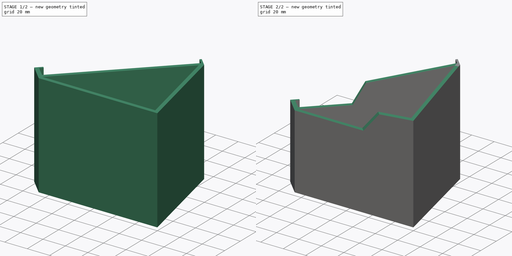
[diagram: build sequence overview — one tinted view per stage of 2, left to right]
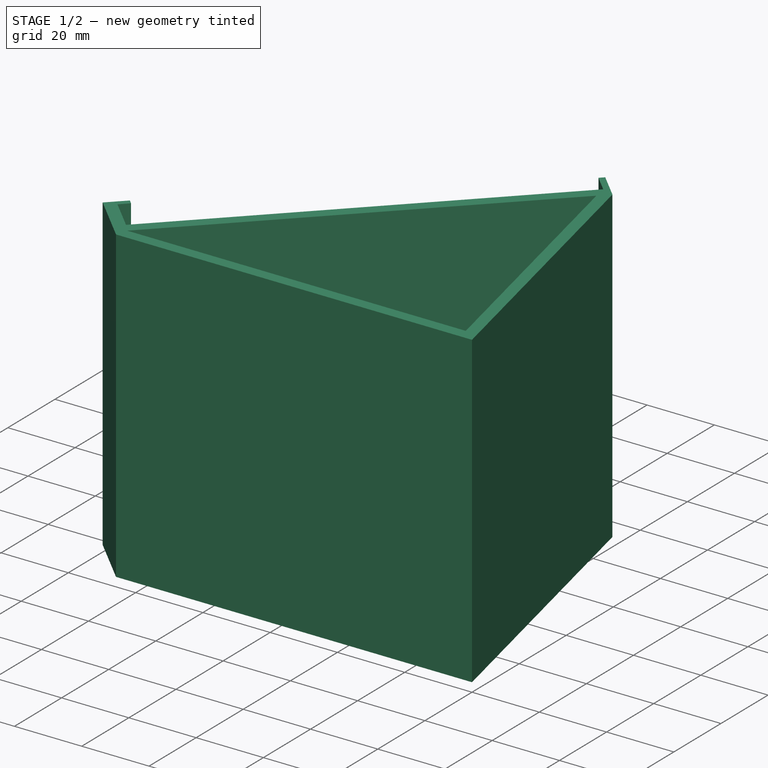
[diagram: stage 1 of 2 — iso view after this stage's code; geometry added in this stage tinted green]
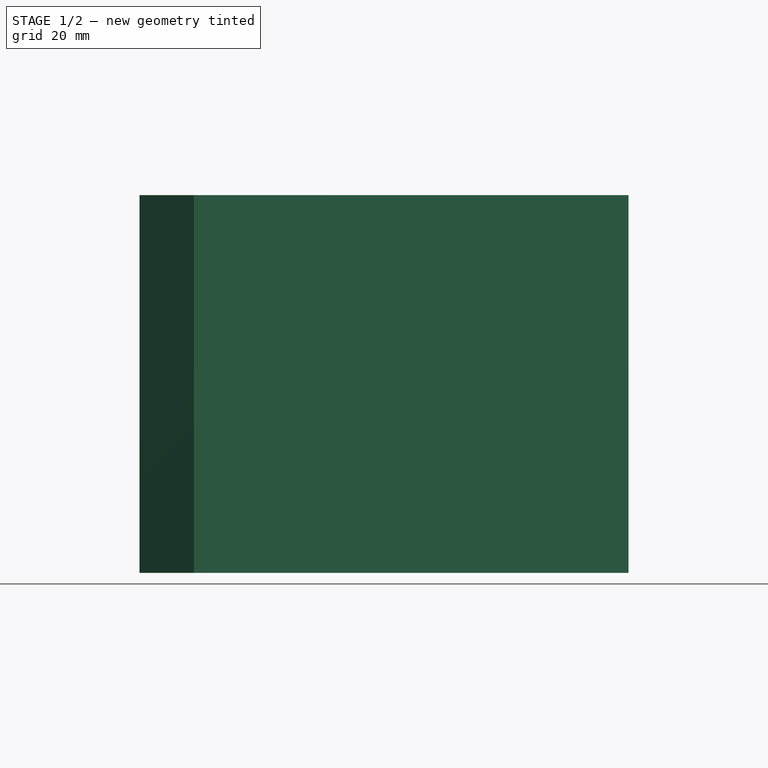
[diagram: stage 1 of 2 — front view after this stage's code; geometry added in this stage tinted green]
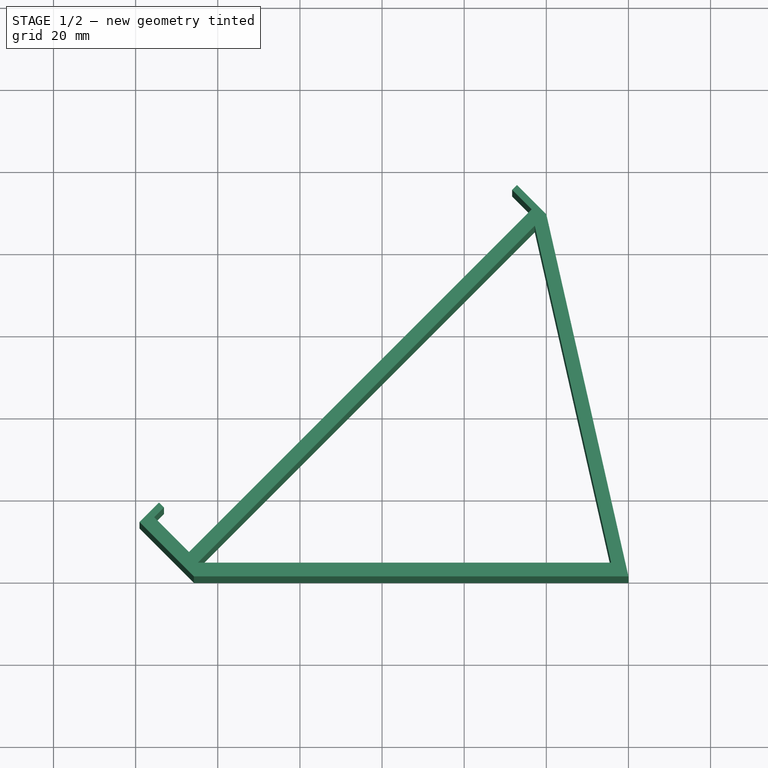
[diagram: stage 1 of 2 — top view after this stage's code; geometry added in this stage tinted green]
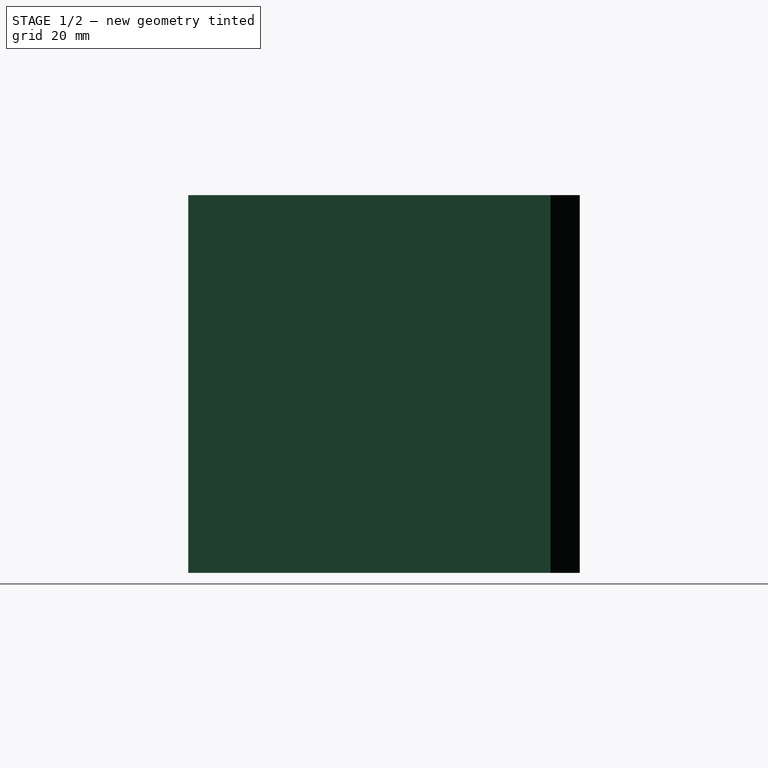
[diagram: stage 1 of 2 — right view after this stage's code; geometry added in this stage tinted green]
FCSTD DOCUMENT  (FreeCAD 1.0R39109 (Git))
Label: split-keyboard-stand
License: All rights reserved
LicenseURL: https://en.wikipedia.org/wiki/All_rights_reserved
objects: Sketcher::SketchObject×2, App::VarSet×1, PartDesign::Pad×1, PartDesign::Pocket×1, PartDesign::Body×1
note: 11 computed .brp shape members not serialized (recipe doc carries the construction recipe); baked Part::Feature solids carry a one-line shape summary decoded from their .brp

FEATURE [App::VarSet] VarSet
  Base_Angle = 45
  Base_HookDepth = 12
  Base_LayerWidth = 0.42
  Base_NarrowWidth = 66
  Base_NarrowWidthOffset = 40
  Base_SurfaceLength = 118
  Base_Thickness = 3.36
  Base_ThinThickness = 1.68
  Base_WideWidth = 92
  expr: Base_ThinThickness = Base_LayerWidth * 4
FEATURE [Sketcher::SketchObject] Sketch
  ArcFitTolerance = 1e-06
  AttachmentSupport = -> [XY_Plane]
  FullyConstrained = true
  MakeInternals = false
  MapMode = 5
  expr: Constraints[0] = VarSet.Base_SurfaceLength
  expr: Constraints[11] = VarSet.Base_HookDepth + VarSet.Base_Thickness * 2
  expr: Constraints[19] = VarSet.Base_Thickness * 2
  expr: Constraints[1] = VarSet.Base_Angle
  expr: Constraints[22] = VarSet.Base_ThinThickness
  expr: Constraints[25] = VarSet.Base_Thickness * 3
  expr: Constraints[3] = VarSet.Base_HookDepth
  expr: Constraints[40] = VarSet.Base_Thickness
  expr: Constraints[41] = VarSet.Base_Thickness
  expr: Constraints[42] = VarSet.Base_Thickness
  expr: Constraints[5] = VarSet.Base_Thickness
  expr: Constraints[6] = VarSet.Base_ThinThickness
  expr: Constraints[9] = VarSet.Base_Thickness * 2
  sketch-geometry (15):
    g0: LineSegment StartX=-107.002 StartY=5.9397 StartZ=0 EndX=-23.5638 EndY=89.3783 EndZ=0
    g1: LineSegment StartX=-107.002 StartY=5.9397 StartZ=0 EndX=-115.488 EndY=14.425 EndZ=0
    g2: LineSegment StartX=-113.112 StartY=16.8009 StartZ=0 EndX=-115.488 EndY=14.425 EndZ=0
    g3: LineSegment StartX=-113.112 StartY=16.8009 StartZ=0 EndX=-114.3 EndY=17.9888 EndZ=0
    g4: LineSegment StartX=-119.052 StartY=13.237 StartZ=0 EndX=-114.3 EndY=17.9888 EndZ=0
    g5: LineSegment StartX=-119.052 StartY=13.237 StartZ=0 EndX=-105.814 EndY=0 EndZ=0
    g6: LineSegment StartX=-23.5638 StartY=89.3783 StartZ=0 EndX=-28.3156 EndY=94.1301 EndZ=0
    g7: LineSegment StartX=-28.3156 StartY=94.1301 StartZ=0 EndX=-27.1276 EndY=95.318 EndZ=0
    g8: LineSegment StartX=-27.1276 StartY=95.318 StartZ=0 EndX=-20 EndY=88.1904 EndZ=0
    g9: LineSegment [constr] StartX=-20 StartY=88.1904 StartZ=0 EndX=-20 EndY=0 EndZ=0
    g10: LineSegment StartX=0 StartY=0 StartZ=0 EndX=-20 EndY=88.1904 EndZ=0
    g11: LineSegment StartX=0 StartY=0 StartZ=0 EndX=-105.814 EndY=0 EndZ=0
    g12: LineSegment StartX=-22.8084 StartY=85.3819 StartZ=0 EndX=-104.83 EndY=3.36 EndZ=0
    g13: LineSegment StartX=-22.8084 StartY=85.3819 StartZ=0 EndX=-4.20731 EndY=3.36 EndZ=0
    g14: LineSegment StartX=-4.20731 StartY=3.36 StartZ=0 EndX=-104.83 EndY=3.36 EndZ=0
  constraints (44):
    c: Distance(g0,g0) = 118
    c: Angle(g-1,g0) = 0.785398
    c: Perpendicular(g0,g1)
    c: Distance(g1,g1) = 12
    c: Perpendicular(g1,g2)
    c: Distance(g2,g2) = 3.36
    c: Distance(g3,g3) = 1.68
    c: Perpendicular(g2,g3)
    c: Perpendicular(g4,g3)
    c: Distance(g4,g4) = 6.72
    c: Perpendicular(g4,g5)
    c: Distance(g5,g5) = 18.72
    c: Coincident(g1,g0)
    c: Coincident(g2,g1)
    c: Coincident(g3,g2)
    c: Coincident(g4,g3)
    c: Coincident(g5,g4)
    c: Coincident(g6,g0)
    c: Perpendicular(g0,g6)
    c: Distance(g6,g6) = 6.72
    c: Coincident(g7,g6)
    c: Perpendicular(g6,g7)
    c: Distance(g7,g7) = 1.68
    c: Coincident(g8,g7)
    c: Perpendicular(g7,g8)
    c: Distance(g8,g8) = 10.08
    c: Coincident(g9,g8)
    c: PointOnObject(g9,g-1)
    c: Vertical(g9)
    c: PointOnObject(g5,g-1)
    c: Coincident(g10,g8)
    c: Coincident(g11,g10)
    c: Coincident(g11,g5)
    c: DistanceX(g9,g10) = 20
    c: Horizontal(g14)
    c: Parallel(g13,g10)
    c: Parallel(g12,g0)
    c: Coincident(g14,g13)
    c: Coincident(g12,g13)
    c: Coincident(g12,g14)
    c: Distance(g0,g12) = 3.36
    c: Distance(g11,g14) = 3.36
    c: Distance(g13,g10) = 3.36
    c: Coincident(g10,g-1)
FEATURE [PartDesign::Pad] Pad
  Direction = (0,0,1)
  Length = 92
  Length2 = 10
  Profile = -> Sketch
  ReferenceAxis = -> Sketch [N_Axis]
  Refine = true
  Suppressed = false
  Type = 0
  expr: Length = VarSet.Base_WideWidth
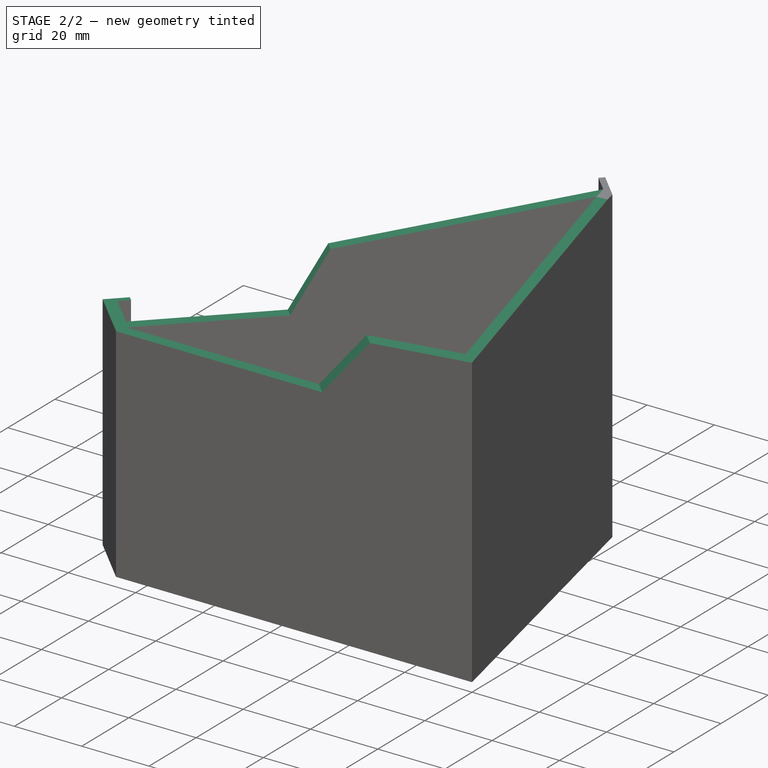
[diagram: stage 2 of 2 — iso view after this stage's code; geometry added in this stage tinted green]
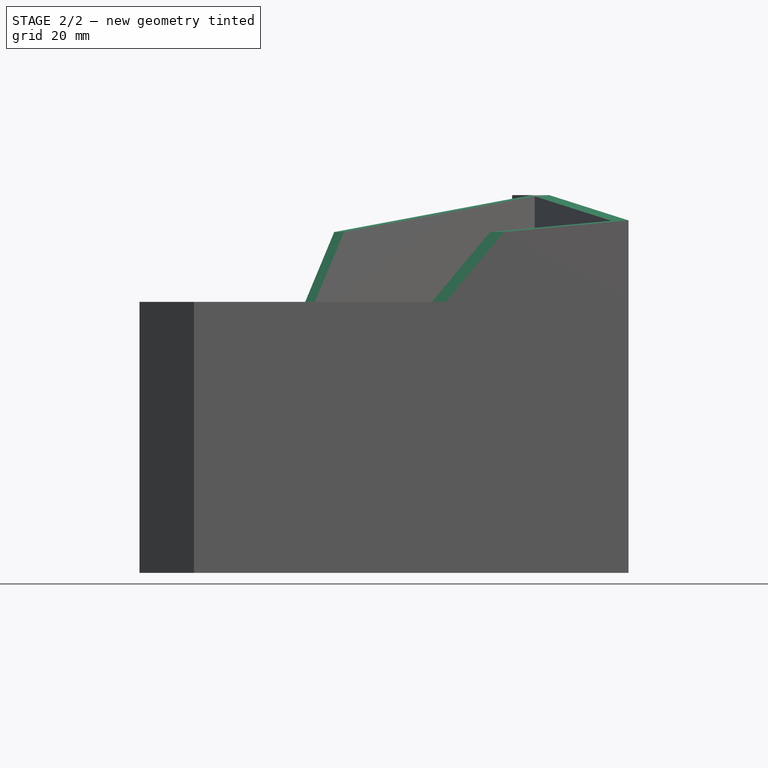
[diagram: stage 2 of 2 — front view after this stage's code; geometry added in this stage tinted green]
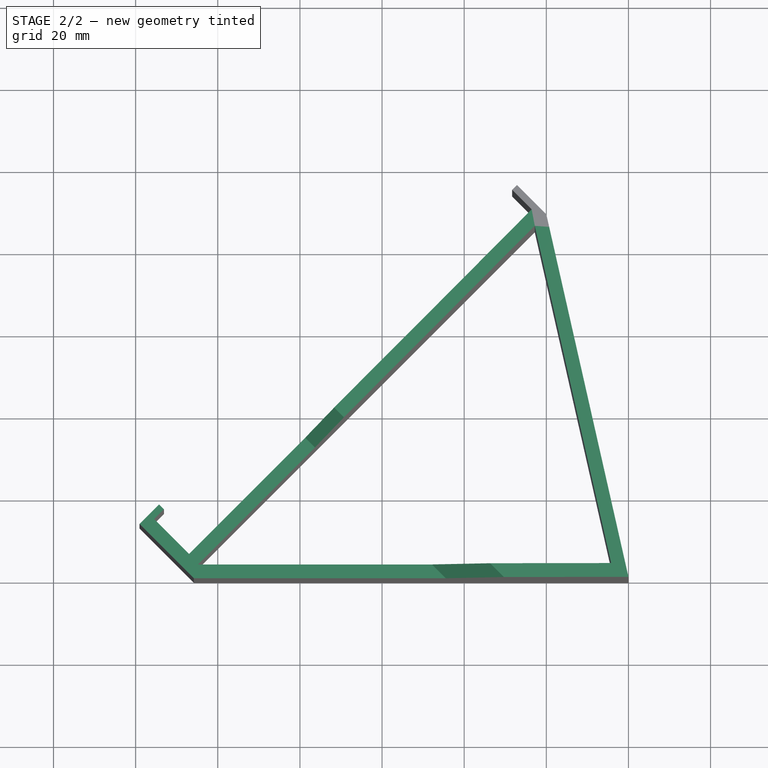
[diagram: stage 2 of 2 — top view after this stage's code; geometry added in this stage tinted green]
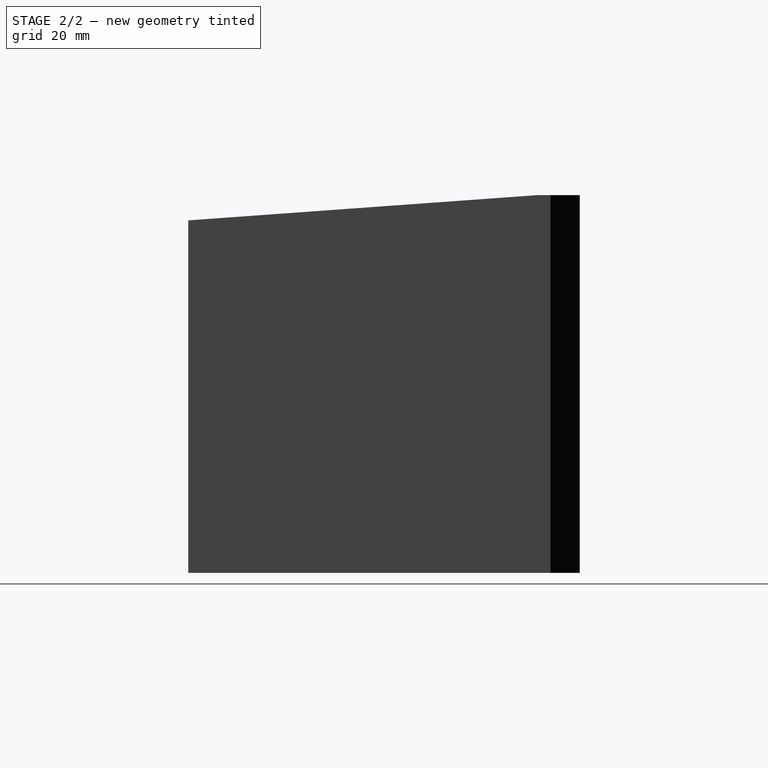
[diagram: stage 2 of 2 — right view after this stage's code; geometry added in this stage tinted green]
FEATURE [Sketcher::SketchObject] Sketch001
  ArcFitTolerance = 1e-06
  AttachmentSupport = -> [Pad]
  ExternalGeometry = -> [Pad]
  FullyConstrained = false
  MakeInternals = false
  MapMode = 5
  Placement = pos=(-56.4711,56.4711,0) rot=(-0.281085,0.678598,0.678598;3.68962rad)
  expr: Constraints[12] = VarSet.Base_NarrowWidthOffset
  expr: Constraints[13] = VarSet.Base_NarrowWidth
  sketch-geometry (8):
    g0: LineSegment StartX=85.0378 StartY=66 StartZ=0 EndX=31.4621 EndY=66 EndZ=0
    g1: LineSegment StartX=31.4621 StartY=66 StartZ=0 EndX=21.4621 EndY=83 EndZ=0
    g2: LineSegment StartX=21.4621 StartY=83 StartZ=0 EndX=-46.5379 EndY=92 EndZ=0
    g3: LineSegment StartX=-46.5379 StartY=92 StartZ=0 EndX=-46.5379 EndY=107.253 EndZ=0
    g4: LineSegment StartX=-46.5379 StartY=107.253 StartZ=0 EndX=85.0378 EndY=107.253 EndZ=0
    g5: LineSegment StartX=85.0378 StartY=107.253 StartZ=0 EndX=85.0378 EndY=66 EndZ=0
    g6: LineSegment [constr] StartX=71.4621 StartY=66 StartZ=0 EndX=31.4621 EndY=66 EndZ=0
    g7: LineSegment [constr] StartX=71.4621 StartY=83 StartZ=0 EndX=21.4621 EndY=83 EndZ=0
  constraints (21):
    c: Horizontal(g0)
    c: Coincident(g1,g0)
    c: Coincident(g2,g1)
    c: Coincident(g3,g2)
    c: Vertical(g3)
    c: Coincident(g4,g3)
    c: Horizontal(g4)
    c: Coincident(g5,g4)
    c: Coincident(g5,g0)
    c: Vertical(g5)
    c: PointOnObject(g6,g-3)
    c: Horizontal(g6)
    c: DistanceX(g6,g6) = 40
    c: DistanceY(g-1,g6) = 66
    c: Coincident(g0,g6)
    c: PointOnObject(g7,g-3)
    c: Horizontal(g7)
    c: Distance(g7,g-1) = 83
    c: DistanceX(g7,g7) = 50
    c: Coincident(g1,g7)
    c: Coincident(g2,g-4)
FEATURE [PartDesign::Pocket] Pocket
  BaseFeature = -> Pad
  Direction = (0.707107,-0.707107,0)
  Length = 200
  Length2 = 5
  Midplane = true
  Profile = -> Sketch001
  ReferenceAxis = -> Sketch001 [N_Axis]
  Refine = true
  Suppressed = false
  Type = 0
FEATURE [PartDesign::Body] Body
  AllowCompound = false
  Group = -> [Sketch,Pad,Sketch001,Pocket]
  Origin = -> Origin
  Tip = -> Pocket
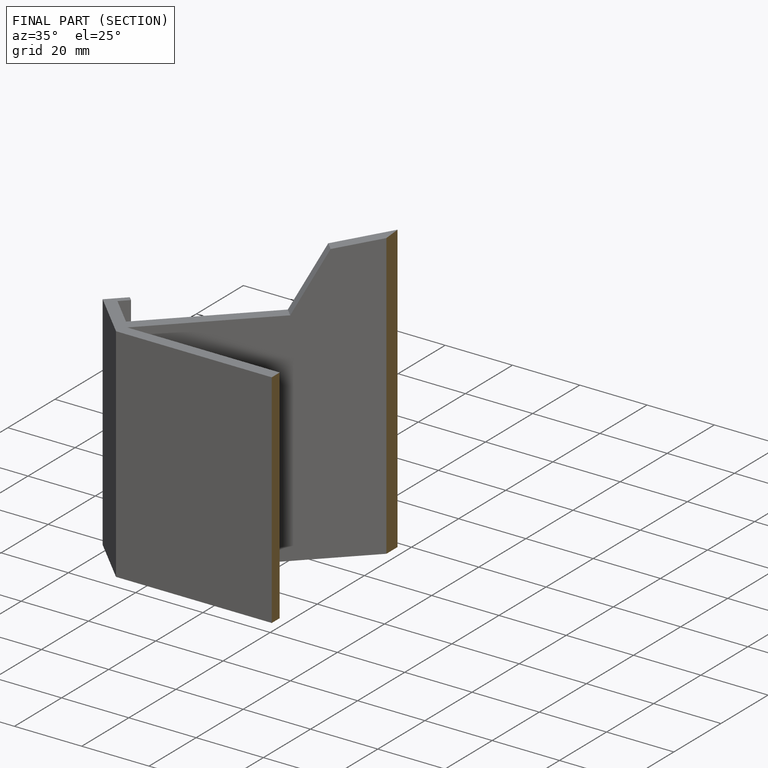
[diagram: finished part — half-section view (interior)]
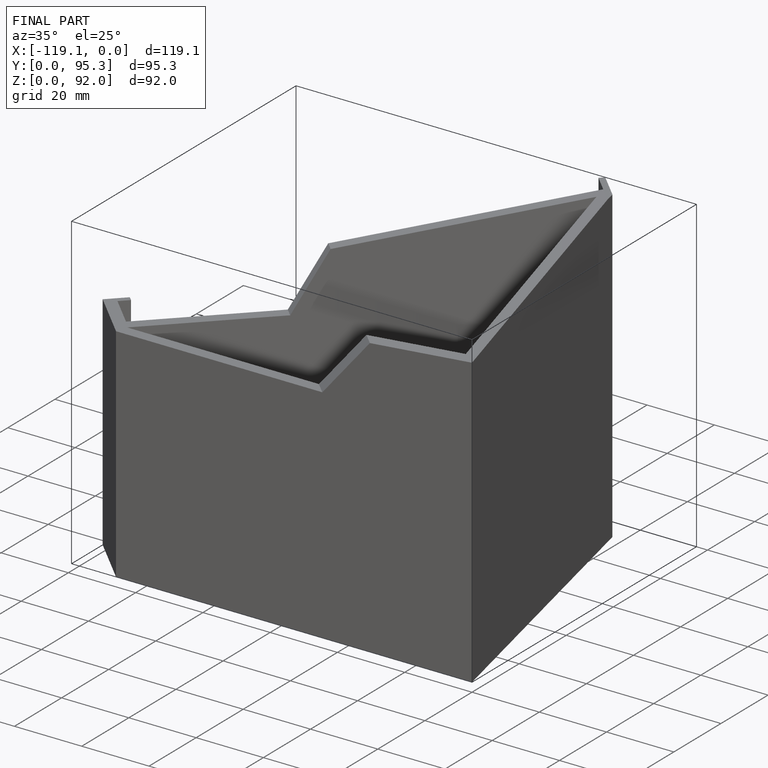
[diagram: finished part — iso view with bounding-box wireframe]
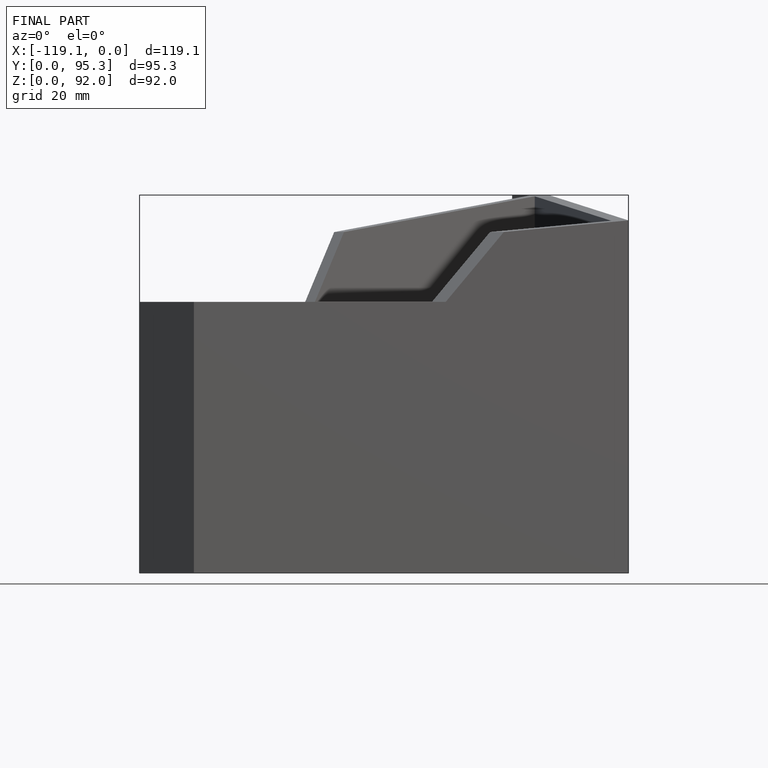
[diagram: finished part — front view with bounding-box wireframe]
